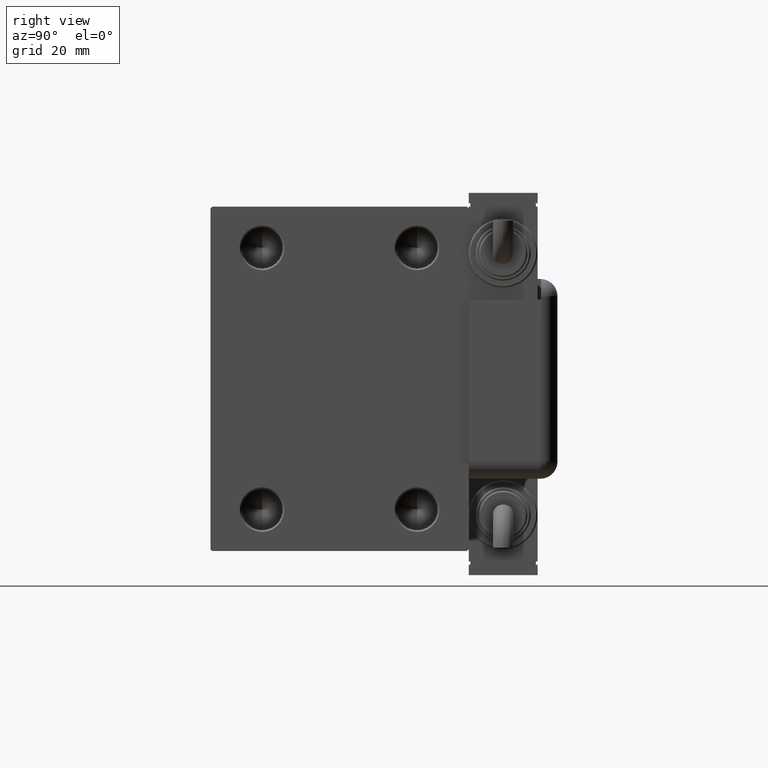
[diagram: clean part render]
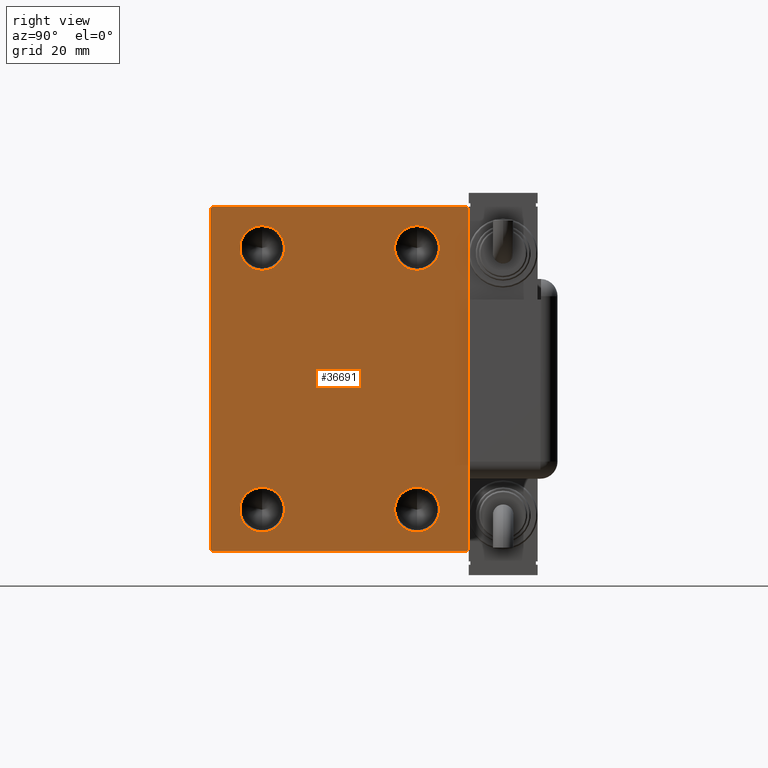
[diagram: same view with one face highlighted and labeled with its STEP entity id]
A machine part, right view. The second image highlights one B-rep face of the part: STEP entity #36691.
In plain terms, the highlighted planar face has unit normal (1, 0, 0).
Its self-contained STEP definition (entity closure, byte-faithful):
#180 = AXIS2_PLACEMENT_3D ( 'NONE', #41118, #59681, #17962 ) ;
#354 = DIRECTION ( 'NONE',  ( 0.000000000000000000, -1.000000000000000000, -2.775557561562891844E-16 ) ) ;
#437 = CARTESIAN_POINT ( 'NONE',  ( 98.00000000000000000, -37.00000000000000000, -50.00000000000000000 ) ) ;
#710 = CARTESIAN_POINT ( 'NONE',  ( 98.00000000000000000, -22.50000000000000000, 44.49999999999998579 ) ) ;
#818 = EDGE_CURVE ( 'NONE', #36033, #41036, #51908, .T. ) ;
#1325 = EDGE_CURVE ( 'NONE', #5819, #31234, #28087, .T. ) ;
#1865 = CARTESIAN_POINT ( 'NONE',  ( 98.00000000000000000, -37.50000000000000000, -49.49999999999997158 ) ) ;
#2285 = VERTEX_POINT ( 'NONE', #15621 ) ;
#2571 = EDGE_CURVE ( 'NONE', #37244, #49977, #31112, .T. ) ;
#2607 = ORIENTED_EDGE ( 'NONE', *, *, #2571, .T. ) ;
#3784 = CIRCLE ( 'NONE', #8673, 6.499999999999992006 ) ;
#4024 = ORIENTED_EDGE ( 'NONE', *, *, #36564, .T. ) ;
#5252 = LINE ( 'NONE', #23867, #48589 ) ;
#5744 = ORIENTED_EDGE ( 'NONE', *, *, #7403, .F. ) ;
#5819 = VERTEX_POINT ( 'NONE', #44421 ) ;
#6474 = VECTOR ( 'NONE', #26545, 999.9999999999998863 ) ;
#6734 = VECTOR ( 'NONE', #26997, 1000.000000000000000 ) ;
#6974 = VECTOR ( 'NONE', #30796, 999.9999999999998863 ) ;
#7403 = EDGE_CURVE ( 'NONE', #54339, #2285, #20877, .T. ) ;
#7820 = EDGE_LOOP ( 'NONE', ( #25803, #24872 ) ) ;
#7958 = DIRECTION ( 'NONE',  ( 0.000000000000000000, 0.000000000000000000, -1.000000000000000000 ) ) ;
#8673 = AXIS2_PLACEMENT_3D ( 'NONE', #17709, #32323, #41754 ) ;
#8831 = FACE_BOUND ( 'NONE', #60083, .T. ) ;
#9883 = EDGE_LOOP ( 'NONE', ( #40473, #56413, #2607, #51250, #44531, #53738, #43629, #4024 ) ) ;
#10799 = CARTESIAN_POINT ( 'NONE',  ( 98.00000000000000000, -22.50000000000000000, 31.50000000000000000 ) ) ;
#11843 = DIRECTION ( 'NONE',  ( 0.000000000000000000, 0.000000000000000000, -1.000000000000000000 ) ) ;
#13289 = CARTESIAN_POINT ( 'NONE',  ( 98.00000000000000000, 37.50000000000000711, -49.50000000000001421 ) ) ;
#14000 = CARTESIAN_POINT ( 'NONE',  ( 98.00000000000000000, -22.50000000000000000, 37.99999999999999289 ) ) ;
#14111 = AXIS2_PLACEMENT_3D ( 'NONE', #14000, #42010, #36539 ) ;
#15621 = CARTESIAN_POINT ( 'NONE',  ( 98.00000000000000000, 22.50000000000000000, 31.50000000000000000 ) ) ;
#17654 = CARTESIAN_POINT ( 'NONE',  ( 98.00000000000000000, 22.50000000000000000, 44.49999999999998579 ) ) ;
#17689 = EDGE_LOOP ( 'NONE', ( #37111, #42064 ) ) ;
#17705 = CARTESIAN_POINT ( 'NONE',  ( 98.00000000000000000, -43.49999999999972999, 43.50000000000034106 ) ) ;
#17709 = CARTESIAN_POINT ( 'NONE',  ( 98.00000000000000000, 22.50000000000000000, -38.00000000000000711 ) ) ;
#17962 = DIRECTION ( 'NONE',  ( 0.000000000000000000, 0.000000000000000000, -1.000000000000000000 ) ) ;
#18363 = CARTESIAN_POINT ( 'NONE',  ( 98.00000000000000000, -22.50000000000000000, -31.50000000000001421 ) ) ;
#18759 = CARTESIAN_POINT ( 'NONE',  ( 98.00000000000000000, -37.50000000000000000, -50.00000000000000000 ) ) ;
#19296 = DIRECTION ( 'NONE',  ( -0.000000000000000000, 0.7071067811865474617, -0.7071067811865474617 ) ) ;
#19331 = VECTOR ( 'NONE', #56075, 1000.000000000000000 ) ;
#19572 = CARTESIAN_POINT ( 'NONE',  ( 98.00000000000000000, 37.00000000000001421, -50.00000000000000000 ) ) ;
#19940 = CARTESIAN_POINT ( 'NONE',  ( 98.00000000000000000, -22.50000000000000000, -38.00000000000000711 ) ) ;
#20877 = CIRCLE ( 'NONE', #35476, 6.499999999999992006 ) ;
#21101 = EDGE_CURVE ( 'NONE', #41803, #49979, #38416, .T. ) ;
#21614 = DIRECTION ( 'NONE',  ( 1.000000000000000000, -0.000000000000000000, -0.000000000000000000 ) ) ;
#22322 = EDGE_CURVE ( 'NONE', #58850, #38364, #3784, .T. ) ;
#22542 = PLANE ( 'NONE',  #180 ) ;
#22729 = CARTESIAN_POINT ( 'NONE',  ( 98.00000000000000000, -22.50000000000000000, 37.99999999999999289 ) ) ;
#22831 = LINE ( 'NONE', #23131, #49682 ) ;
#23128 = CARTESIAN_POINT ( 'NONE',  ( 98.00000000000000000, -22.50000000000000000, -44.50000000000000000 ) ) ;
#23131 = CARTESIAN_POINT ( 'NONE',  ( 98.00000000000000000, 43.49999999999974420, -43.50000000000034817 ) ) ;
#23867 = CARTESIAN_POINT ( 'NONE',  ( 98.00000000000000000, -43.50000000000000711, -43.50000000000000711 ) ) ;
#23903 = DIRECTION ( 'NONE',  ( 0.000000000000000000, 0.000000000000000000, -1.000000000000000000 ) ) ;
#23968 = CARTESIAN_POINT ( 'NONE',  ( 98.00000000000000000, -37.50000000000000000, 49.49999999999998579 ) ) ;
#24872 = ORIENTED_EDGE ( 'NONE', *, *, #818, .F. ) ;
#25803 = ORIENTED_EDGE ( 'NONE', *, *, #48949, .F. ) ;
#26509 = VERTEX_POINT ( 'NONE', #19572 ) ;
#26545 = DIRECTION ( 'NONE',  ( 0.000000000000000000, -0.7071067811865525687, -0.7071067811865425767 ) ) ;
#26997 = DIRECTION ( 'NONE',  ( 0.000000000000000000, 1.000000000000000000, 0.000000000000000000 ) ) ;
#27102 = EDGE_CURVE ( 'NONE', #26509, #41803, #22831, .T. ) ;
#28087 = LINE ( 'NONE', #46678, #47042 ) ;
#28181 = ORIENTED_EDGE ( 'NONE', *, *, #46807, .F. ) ;
#28938 = ORIENTED_EDGE ( 'NONE', *, *, #32742, .F. ) ;
#29446 = VERTEX_POINT ( 'NONE', #437 ) ;
#29896 = CARTESIAN_POINT ( 'NONE',  ( 98.00000000000000000, 43.49999999999974420, 43.50000000000035527 ) ) ;
#30756 = CARTESIAN_POINT ( 'NONE',  ( 98.00000000000000000, 22.50000000000000000, 37.99999999999999289 ) ) ;
#30796 = DIRECTION ( 'NONE',  ( -0.000000000000000000, -0.7071067811865525687, 0.7071067811865425767 ) ) ;
#31011 = CARTESIAN_POINT ( 'NONE',  ( 98.00000000000000000, 22.50000000000000000, -31.50000000000001421 ) ) ;
#31112 = LINE ( 'NONE', #49689, #47129 ) ;
#31234 = VERTEX_POINT ( 'NONE', #45602 ) ;
#31675 = FACE_BOUND ( 'NONE', #17689, .T. ) ;
#32323 = DIRECTION ( 'NONE',  ( 1.000000000000000000, -0.000000000000000000, -0.000000000000000000 ) ) ;
#32466 = DIRECTION ( 'NONE',  ( 1.000000000000000000, -0.000000000000000000, -0.000000000000000000 ) ) ;
#32742 = EDGE_CURVE ( 'NONE', #2285, #54339, #43821, .T. ) ;
#33167 = DIRECTION ( 'NONE',  ( -0.000000000000000000, 0.7071067811865524577, 0.7071067811865426878 ) ) ;
#34374 = EDGE_LOOP ( 'NONE', ( #5744, #28938 ) ) ;
#34505 = CIRCLE ( 'NONE', #39371, 6.499999999999992006 ) ;
#35093 = VERTEX_POINT ( 'NONE', #710 ) ;
#35476 = AXIS2_PLACEMENT_3D ( 'NONE', #48794, #44516, #44809 ) ;
#36033 = VERTEX_POINT ( 'NONE', #23128 ) ;
#36241 = FACE_BOUND ( 'NONE', #7820, .T. ) ;
#36539 = DIRECTION ( 'NONE',  ( 0.000000000000000000, 0.000000000000000000, -1.000000000000000000 ) ) ;
#36564 = EDGE_CURVE ( 'NONE', #49979, #5819, #44503, .T. ) ;
#36691 = ADVANCED_FACE ( 'NONE', ( #49949, #8831, #36241, #31675, #50248 ), #22542, .T. ) ;
#37111 = ORIENTED_EDGE ( 'NONE', *, *, #56616, .F. ) ;
#37244 = VERTEX_POINT ( 'NONE', #23968 ) ;
#37303 = DIRECTION ( 'NONE',  ( 1.000000000000000000, -0.000000000000000000, -0.000000000000000000 ) ) ;
#37640 = DIRECTION ( 'NONE',  ( 0.000000000000000000, 0.000000000000000000, -1.000000000000000000 ) ) ;
#38364 = VERTEX_POINT ( 'NONE', #31011 ) ;
#38416 = LINE ( 'NONE', #42077, #19331 ) ;
#39371 = AXIS2_PLACEMENT_3D ( 'NONE', #22729, #32466, #37640 ) ;
#40473 = ORIENTED_EDGE ( 'NONE', *, *, #1325, .T. ) ;
#40855 = LINE ( 'NONE', #17705, #6474 ) ;
#41036 = VERTEX_POINT ( 'NONE', #18363 ) ;
#41118 = CARTESIAN_POINT ( 'NONE',  ( 98.00000000000000000, 0.000000000000000000, 0.000000000000000000 ) ) ;
#41213 = AXIS2_PLACEMENT_3D ( 'NONE', #19940, #37303, #23903 ) ;
#41754 = DIRECTION ( 'NONE',  ( 0.000000000000000000, 0.000000000000000000, -1.000000000000000000 ) ) ;
#41803 = VERTEX_POINT ( 'NONE', #13289 ) ;
#42010 = DIRECTION ( 'NONE',  ( 1.000000000000000000, -0.000000000000000000, -0.000000000000000000 ) ) ;
#42064 = ORIENTED_EDGE ( 'NONE', *, *, #22322, .F. ) ;
#42077 = CARTESIAN_POINT ( 'NONE',  ( 98.00000000000000000, 37.50000000000000711, -50.00000000000000000 ) ) ;
#43629 = ORIENTED_EDGE ( 'NONE', *, *, #21101, .T. ) ;
#43821 = CIRCLE ( 'NONE', #50582, 6.499999999999992006 ) ;
#44421 = CARTESIAN_POINT ( 'NONE',  ( 98.00000000000000000, 37.00000000000000711, 50.00000000000000711 ) ) ;
#44428 = DIRECTION ( 'NONE',  ( 1.000000000000000000, -0.000000000000000000, -0.000000000000000000 ) ) ;
#44503 = LINE ( 'NONE', #29896, #6974 ) ;
#44516 = DIRECTION ( 'NONE',  ( 1.000000000000000000, -0.000000000000000000, -0.000000000000000000 ) ) ;
#44531 = ORIENTED_EDGE ( 'NONE', *, *, #57925, .T. ) ;
#44809 = DIRECTION ( 'NONE',  ( 0.000000000000000000, 0.000000000000000000, -1.000000000000000000 ) ) ;
#45602 = CARTESIAN_POINT ( 'NONE',  ( 98.00000000000000000, -36.99999999999999289, 49.99999999999998579 ) ) ;
#45949 = DIRECTION ( 'NONE',  ( 0.000000000000000000, 0.000000000000000000, -1.000000000000000000 ) ) ;
#46011 = VERTEX_POINT ( 'NONE', #10799 ) ;
#46678 = CARTESIAN_POINT ( 'NONE',  ( 98.00000000000000000, 37.49999999999999289, 50.00000000000000711 ) ) ;
#46807 = EDGE_CURVE ( 'NONE', #35093, #46011, #34505, .T. ) ;
#47042 = VECTOR ( 'NONE', #354, 1000.000000000000000 ) ;
#47129 = VECTOR ( 'NONE', #7958, 1000.000000000000000 ) ;
#47493 = CIRCLE ( 'NONE', #60165, 6.499999999999992006 ) ;
#48589 = VECTOR ( 'NONE', #19296, 1000.000000000000114 ) ;
#48684 = EDGE_CURVE ( 'NONE', #46011, #35093, #51048, .T. ) ;
#48794 = CARTESIAN_POINT ( 'NONE',  ( 98.00000000000000000, 22.50000000000000000, 37.99999999999999289 ) ) ;
#48949 = EDGE_CURVE ( 'NONE', #41036, #36033, #54995, .T. ) ;
#49682 = VECTOR ( 'NONE', #33167, 1000.000000000000000 ) ;
#49689 = CARTESIAN_POINT ( 'NONE',  ( 98.00000000000000000, -37.50000000000000000, 49.99999999999998579 ) ) ;
#49949 = FACE_BOUND ( 'NONE', #34374, .T. ) ;
#49977 = VERTEX_POINT ( 'NONE', #1865 ) ;
#49979 = VERTEX_POINT ( 'NONE', #57621 ) ;
#50248 = FACE_OUTER_BOUND ( 'NONE', #9883, .T. ) ;
#50499 = CARTESIAN_POINT ( 'NONE',  ( 98.00000000000000000, 22.50000000000000000, -38.00000000000000711 ) ) ;
#50582 = AXIS2_PLACEMENT_3D ( 'NONE', #30756, #21614, #57560 ) ;
#51048 = CIRCLE ( 'NONE', #14111, 6.499999999999992006 ) ;
#51250 = ORIENTED_EDGE ( 'NONE', *, *, #59164, .T. ) ;
#51908 = CIRCLE ( 'NONE', #41213, 6.499999999999992006 ) ;
#52036 = ORIENTED_EDGE ( 'NONE', *, *, #48684, .F. ) ;
#52090 = EDGE_CURVE ( 'NONE', #31234, #37244, #40855, .T. ) ;
#53738 = ORIENTED_EDGE ( 'NONE', *, *, #27102, .T. ) ;
#54339 = VERTEX_POINT ( 'NONE', #17654 ) ;
#54995 = CIRCLE ( 'NONE', #55959, 6.499999999999992006 ) ;
#55364 = DIRECTION ( 'NONE',  ( 1.000000000000000000, -0.000000000000000000, -0.000000000000000000 ) ) ;
#55959 = AXIS2_PLACEMENT_3D ( 'NONE', #58421, #44428, #11843 ) ;
#56075 = DIRECTION ( 'NONE',  ( 0.000000000000000000, -1.387778780781445676E-16, 1.000000000000000000 ) ) ;
#56413 = ORIENTED_EDGE ( 'NONE', *, *, #52090, .T. ) ;
#56510 = CARTESIAN_POINT ( 'NONE',  ( 98.00000000000000000, 22.50000000000000000, -44.50000000000000000 ) ) ;
#56616 = EDGE_CURVE ( 'NONE', #38364, #58850, #47493, .T. ) ;
#57560 = DIRECTION ( 'NONE',  ( 0.000000000000000000, 0.000000000000000000, -1.000000000000000000 ) ) ;
#57621 = CARTESIAN_POINT ( 'NONE',  ( 98.00000000000000000, 37.49999999999999289, 49.50000000000002842 ) ) ;
#57925 = EDGE_CURVE ( 'NONE', #29446, #26509, #59278, .T. ) ;
#58421 = CARTESIAN_POINT ( 'NONE',  ( 98.00000000000000000, -22.50000000000000000, -38.00000000000000711 ) ) ;
#58850 = VERTEX_POINT ( 'NONE', #56510 ) ;
#59164 = EDGE_CURVE ( 'NONE', #49977, #29446, #5252, .T. ) ;
#59278 = LINE ( 'NONE', #18759, #6734 ) ;
#59681 = DIRECTION ( 'NONE',  ( 1.000000000000000000, 0.000000000000000000, 0.000000000000000000 ) ) ;
#60083 = EDGE_LOOP ( 'NONE', ( #28181, #52036 ) ) ;
#60165 = AXIS2_PLACEMENT_3D ( 'NONE', #50499, #55364, #45949 ) ;